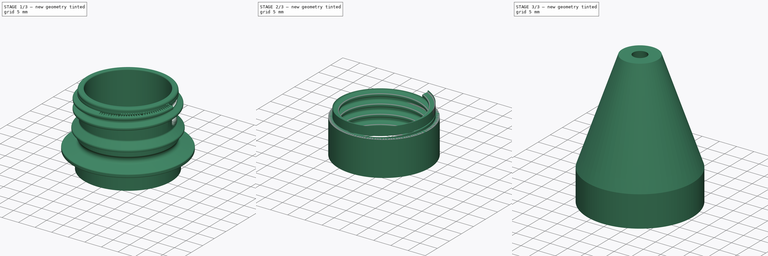
[diagram: build sequence overview — one tinted view per stage of 3, left to right]
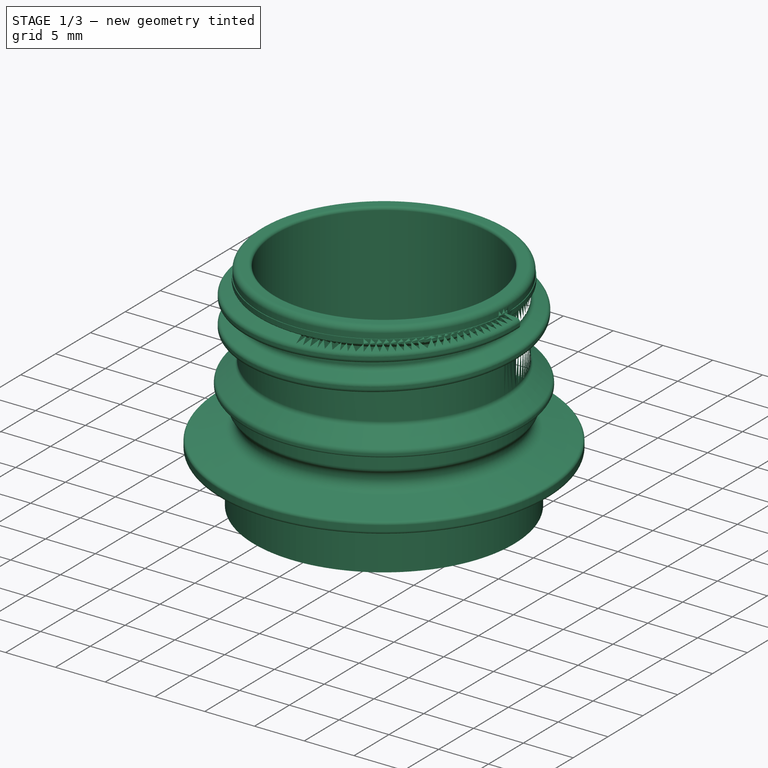
[diagram: stage 1 of 3 — iso view after this stage's code; geometry added in this stage tinted green]
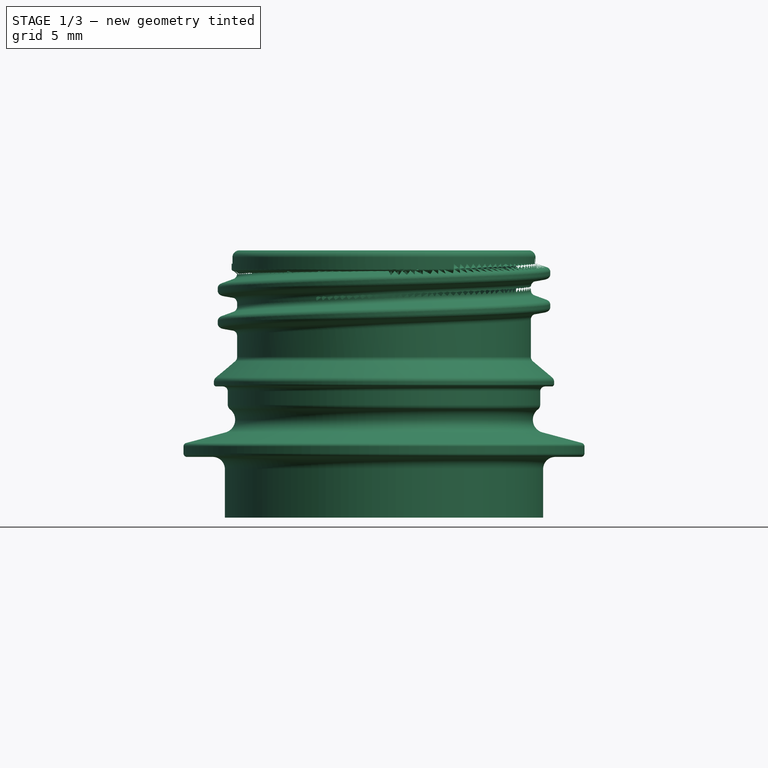
[diagram: stage 1 of 3 — front view after this stage's code; geometry added in this stage tinted green]
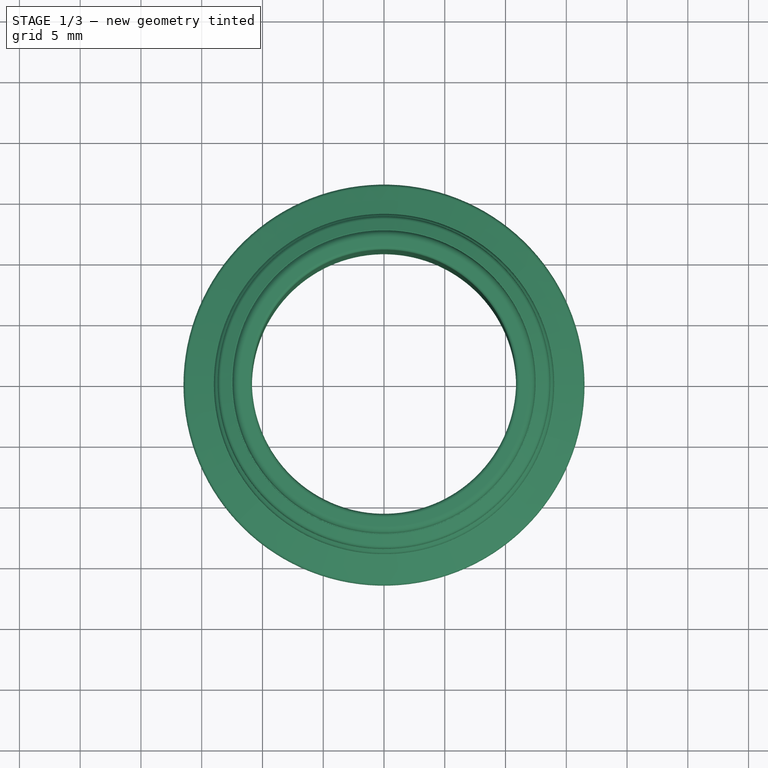
[diagram: stage 1 of 3 — top view after this stage's code; geometry added in this stage tinted green]
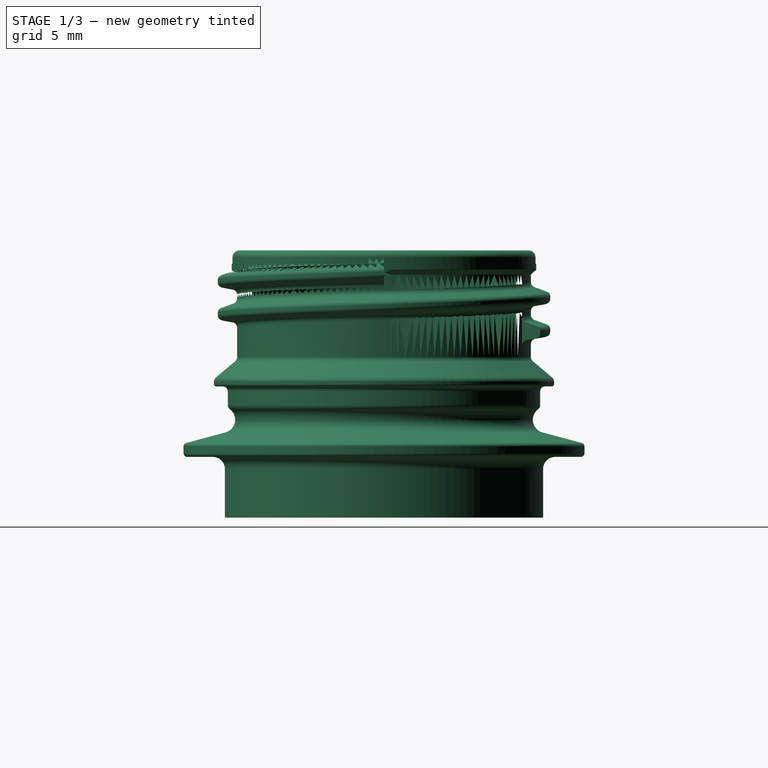
[diagram: stage 1 of 3 — right view after this stage's code; geometry added in this stage tinted green]
FCSTD DOCUMENT  (FreeCAD 0.22R36958 (Git))
Label: dosator
License: All rights reserved
LicenseURL: http://en.wikipedia.org/wiki/All_rights_reserved
objects: Sketcher::SketchObject×6, PartDesign::SubShapeBinder×4, PartDesign::Revolution×2, PartDesign::AdditiveHelix×2, PartDesign::Body×2, PartDesign::Pocket×2, PartDesign::Pad×1
note: 26 computed .brp shape members not serialized (recipe doc carries the construction recipe); baked Part::Feature solids carry a one-line shape summary decoded from their .brp

FEATURE [Sketcher::SketchObject] Sketch
  AttachmentSupport = -> [XZ_Plane]
  FullyConstrained = true
  MapMode = 5
  Placement = pos=(0,0,0) rot=(1,0,0;1.5708rad)
  sketch-geometry (36):
    g0: LineSegment StartX=10.87 StartY=21.7 StartZ=0 EndX=10.87 EndY=0 EndZ=0
    g1: LineSegment StartX=10.87 StartY=0 StartZ=0 EndX=13.095 EndY=0 EndZ=0
    g2: LineSegment StartX=13.095 StartY=0 StartZ=0 EndX=13.095 EndY=4 EndZ=0
    g3: LineSegment StartX=14.095 StartY=5 StartZ=0 EndX=16.2 EndY=5 EndZ=0
    g4: LineSegment StartX=16.5 StartY=5.3 StartZ=0 EndX=16.5 EndY=5.86 EndZ=0
    g5: LineSegment StartX=16.2776 StartY=6.14978 StartZ=0 EndX=13.0505 EndY=7.0145 EndZ=0
    g6: ArcOfCircle CenterX=14.095 CenterY=4 CenterZ=0 NormalX=0 NormalY=0 NormalZ=1 AngleXU=0 Radius=1 StartAngle=1.5708 EndAngle=3.14159
    g7: GeomPoint X=13.095 Y=5 Z=0
    g8: ArcOfCircle CenterX=16.2 CenterY=5.3 CenterZ=0 NormalX=0 NormalY=0 NormalZ=1 AngleXU=0 Radius=0.3 StartAngle=4.71239 EndAngle=6.28319
    g9: GeomPoint X=16.5 Y=5 Z=0
    g10: ArcOfCircle CenterX=16.2 CenterY=5.86 CenterZ=0 NormalX=0 NormalY=0 NormalZ=1 AngleXU=0 Radius=0.3 StartAngle=1.5e-15 EndAngle=1.309
    g11: GeomPoint X=16.5 Y=6.0902 Z=0
    g12: ArcOfCircle CenterX=13.33 CenterY=8.0577 CenterZ=0 NormalX=0 NormalY=0 NormalZ=1 AngleXU=0 Radius=1.08 StartAngle=2.23583 EndAngle=4.45059
    g13: ArcOfCircle CenterX=11.17 CenterY=21.7 CenterZ=0 NormalX=0 NormalY=0 NormalZ=1 AngleXU=0 Radius=0.3 StartAngle=1.5708 EndAngle=3.14159
    g14: ArcOfCircle CenterX=11.89 CenterY=21.42 CenterZ=0 NormalX=0 NormalY=0 NormalZ=1 AngleXU=0 Radius=0.58 StartAngle=8e-16 EndAngle=1.5708
    g15: ArcOfCircle CenterX=12.385 CenterY=20.45 CenterZ=0 NormalX=0 NormalY=0 NormalZ=1 AngleXU=0 Radius=0.15 StartAngle=4.71239 EndAngle=6.28319
    g16: ArcOfCircle CenterX=12.385 CenterY=20 CenterZ=0 NormalX=0 NormalY=0 NormalZ=1 AngleXU=0 Radius=0.3 StartAngle=1.5708 EndAngle=3.14159
    g17: LineSegment StartX=11.17 StartY=22 StartZ=0 EndX=11.89 EndY=22 EndZ=0
    g18: LineSegment StartX=12.47 StartY=21.42 StartZ=0 EndX=12.47 EndY=20.9 EndZ=0
    g19: LineSegment StartX=12.47 StartY=20.9 StartZ=0 EndX=12.535 EndY=20.9 EndZ=0
    g20: LineSegment StartX=12.535 StartY=20.45 StartZ=0 EndX=12.535 EndY=20.9 EndZ=0
    g21: LineSegment StartX=0 StartY=20.3 StartZ=0 EndX=12.385 EndY=20.3 EndZ=0
    g22: LineSegment StartX=12.085 StartY=20 StartZ=0 EndX=12.085 EndY=13.2432 EndZ=0
    g23: ArcOfCircle CenterX=12.355 CenterY=9.30099 CenterZ=0 NormalX=0 NormalY=0 NormalZ=1 AngleXU=0 Radius=0.5 StartAngle=5.37743 EndAngle=6.28319
    g24: LineSegment StartX=12.855 StartY=9.30099 StartZ=0 EndX=12.855 EndY=10.39 EndZ=0
    g25: LineSegment StartX=13.265 StartY=10.8 StartZ=0 EndX=13.8 EndY=10.8 EndZ=0
    g26: LineSegment StartX=14 StartY=11 StartZ=0 EndX=14 EndY=11.17 EndZ=0
    g27: LineSegment StartX=13.8214 StartY=11.553 StartZ=0 EndX=12.2636 EndY=12.8602 EndZ=0
    g28: ArcOfCircle CenterX=13.265 CenterY=10.39 CenterZ=0 NormalX=0 NormalY=0 NormalZ=1 AngleXU=0 Radius=0.41 StartAngle=1.5708 EndAngle=3.14159
    g29: GeomPoint X=12.855 Y=10.8 Z=0
    g30: ArcOfCircle CenterX=13.8 CenterY=11 CenterZ=0 NormalX=0 NormalY=0 NormalZ=1 AngleXU=0 Radius=0.2 StartAngle=4.71239 EndAngle=6.28319
    g31: GeomPoint X=14 Y=10.8 Z=0
    g32: ArcOfCircle CenterX=13.5 CenterY=11.17 CenterZ=0 NormalX=0 NormalY=0 NormalZ=1 AngleXU=0 Radius=0.5 StartAngle=1.8e-15 EndAngle=0.872665
    g33: GeomPoint X=14 Y=11.4032 Z=0
    g34: ArcOfCircle CenterX=12.585 CenterY=13.2432 CenterZ=0 NormalX=0 NormalY=0 NormalZ=1 AngleXU=0 Radius=0.5 StartAngle=3.14159 EndAngle=4.01426
    g35: LineSegment StartX=0 StartY=8.0577 StartZ=0 EndX=12.25 EndY=8.0577 EndZ=0
  constraints (93):
    c: PointOnObject(g0,g-1)
    c: Vertical(g0)
    c: Coincident(g0,g1)
    c: PointOnObject(g1,g-1)
    c: Coincident(g1,g2)
    c: Vertical(g2)
    c: Horizontal(g3)
    c: Vertical(g4)
    c: PointOnObject(g7,g2)
    c: PointOnObject(g7,g3)
    c: Tangent(g2,g6) = 1.5708
    c: Tangent(g3,g6) = 1.5708
    c: PointOnObject(g9,g3)
    c: PointOnObject(g9,g4)
    c: Tangent(g3,g8) = -1.5708
    c: Tangent(g4,g8) = -1.5708
    c: PointOnObject(g11,g4)
    c: PointOnObject(g11,g5)
    c: Tangent(g4,g10) = -1.5708
    c: Tangent(g5,g10) = -1.5708
    c: Radius(g12) = 1.08
    c: Radius(g6) = 1
    c: DistanceX(g1) = 13.095
    c: Equal(g8,g10)
    c: Radius(g8) = 0.3
    c: Tangent(g12,g5) = 1.5708
    c: DistanceX(g4) = 16.5
    c: DistanceY(g7) = 5
    c: DistanceY(g4,g4) = 0.56
    c: Coincident(g19,g18)
    c: Horizontal(g19)
    c: Coincident(g20,g19)
    c: Vertical(g20)
    c: Vertical(g18)
    c: Horizontal(g17)
    c: Tangent(g17,g13) = 1.5708
    c: Tangent(g17,g14) = 1.5708
    c: Tangent(g18,g14) = 1.5708
    c: Tangent(g13,g0) = -1.5708
    c: Tangent(g16,g15) = 1.5708
    c: PointOnObject(g21,g-2)
    c: Horizontal(g21)
    c: Tangent(g21,g15) = -1.5708
    c: Tangent(g20,g15) = -1.5708
    c: Radius(g15) = 0.15
    c: Radius(g16) = 0.3
    c: Tangent(g22,g16) = -1.5708
    c: Vertical(g22)
    c: Radius(g13) = 0.3
    c: Radius(g14) = 0.58
    c: DistanceX(g18) = 12.47
    c: DistanceX(g19) = 12.535
    c: DistanceY(g15,g14) = 1.7
    c: DistanceY(g18,g14) = 1.1
    c: DistanceX(g0) = 10.87
    c: DistanceY(g7,g14) = 17
    c: Angle(g5,g3) = 0.261799
    c: Tangent(g23,g12) = 1.5708
    c: Radius(g23) = 0.5
    c: Tangent(g23,g24) = -1.5708
    c: Horizontal(g25)
    c: Vertical(g26)
    c: Vertical(g24)
    c: PointOnObject(g29,g24)
    c: PointOnObject(g29,g25)
    c: Tangent(g24,g28) = 1.5708
    c: Tangent(g25,g28) = 1.5708
    c: PointOnObject(g31,g25)
    c: PointOnObject(g31,g26)
    c: Tangent(g25,g30) = -1.5708
    c: Tangent(g26,g30) = -1.5708
    c: PointOnObject(g33,g26)
    c: PointOnObject(g33,g27)
    c: Tangent(g26,g32) = -1.5708
    c: Tangent(g27,g32) = -1.5708
    c: Radius(g28) = 0.41
    c: Radius(g30) = 0.2
    c: Radius(g32) = 0.5
    c: Angle(g27,g-1) = 0.698132
    c: Tangent(g34,g27) = 1.5708
    c: Tangent(g34,g22) = -1.5708
    c: Radius(g34) = 0.5
    c: DistanceX(g26) = 14
    c: DistanceX(g29) = 12.855
    c: PointOnObject(g35,g-2)
    c: PointOnObject(g35,g12)
    c: Horizontal(g35)
    c: Perpendicular(g12,g35)
    c: DistanceX(g35) = 12.25
    c: DistanceY(g26,g26) = 0.17
    c: DistanceY(g29,g14) = 11.2
    c: DistanceX(g16) = 12.085
    c: DistanceY(g34,g14) = 8.75682
FEATURE [PartDesign::Revolution] Revolution
  Angle = 360
  Angle2 = 60
  Axis = (0,2e-16,1)
  Base = (0,0,0)
  Placement = pos=(0,0,0) rot=(1,0,0;1.5708rad)
  Profile = -> Sketch
  ReferenceAxis = -> Sketch [V_Axis]
  Reversed = true
  Suppressed = false
  Type = 0
FEATURE [Sketcher::SketchObject] Sketch001
  AttachmentOffset = pos=(12.085,19,0) rot=(0,0,1;0rad)
  AttachmentSupport = -> [XZ_Plane]
  FullyConstrained = true
  MapMode = 5
  Placement = pos=(12.085,4.2e-15,19) rot=(1,0,0;1.5708rad)
  sketch-geometry (10):
    g0: ArcOfCircle CenterX=0.5 CenterY=1e-16 CenterZ=0 NormalX=0 NormalY=0 NormalZ=1 AngleXU=0 Radius=0.5 StartAngle=1.74533 EndAngle=3.14159
    g1: LineSegment StartX=0.413176 StartY=0.492404 StartZ=0 EndX=1.26946 EndY=0.64339 EndZ=0
    g2: LineSegment StartX=1.6 StartY=1.03731 StartZ=0 EndX=1.6 EndY=1.22159 EndZ=0
    g3: LineSegment StartX=1.33681 StartY=1.59747 StartZ=0 EndX=0.32899 EndY=1.96428 EndZ=0
    g4: ArcOfCircle CenterX=0.5 CenterY=2.43413 CenterZ=0 NormalX=0 NormalY=0 NormalZ=1 AngleXU=0 Radius=0.5 StartAngle=3.14159 EndAngle=4.36332
    g5: ArcOfCircle CenterX=1.2 CenterY=1.03731 CenterZ=0 NormalX=0 NormalY=0 NormalZ=1 AngleXU=0 Radius=0.4 StartAngle=4.88692 EndAngle=6.28319
    g6: GeomPoint X=1.6 Y=0.701673 Z=0
    g7: ArcOfCircle CenterX=1.2 CenterY=1.22159 CenterZ=0 NormalX=0 NormalY=0 NormalZ=1 AngleXU=0 Radius=0.4 StartAngle=0 EndAngle=1.22173
    g8: GeomPoint X=1.6 Y=1.50167 Z=0
    g9: LineSegment StartX=0 StartY=2.43413 StartZ=0 EndX=0 EndY=0 EndZ=0
  constraints (24):
    c: Tangent(g0,g1) = 1.5708
    c: Tangent(g4,g-2) = 1.5708
    c: Tangent(g0,g-2) = 1.5708
    c: Angle(g1,g-1) = 2.96706
    c: PointOnObject(g6,g1)
    c: PointOnObject(g6,g2)
    c: Tangent(g1,g5) = -1.5708
    c: Tangent(g2,g5) = -1.5708
    c: PointOnObject(g8,g2)
    c: PointOnObject(g8,g3)
    c: Tangent(g2,g7) = -1.5708
    c: Tangent(g3,g7) = -1.5708
    c: Vertical(g2)
    c: DistanceX(g6) = 1.6
    c: Equal(g5,g7)
    c: Radius(g5) = 0.4
    c: Equal(g0,g4)
    c: Radius(g0) = 0.5
    c: DistanceY(g6,g8) = 0.8
    c: PointOnObject(g0,g-1)
    c: Angle(g3,g-1) = 0.349066
    c: Tangent(g4,g3) = 1.5708
    c: Coincident(g9,g0)
    c: Coincident(g9,g4)
FEATURE [PartDesign::AdditiveHelix] AdditiveHelix
  Angle = 0
  Axis = (1e-16,1e-16,1)
  Base = (0,0,0)
  BaseFeature = -> Revolution
  Growth = 0
  HasBeenEdited = true
  Height = 4.875
  LeftHanded = false
  Mode = 1
  Outside = false
  Pitch = 2.7
  Placement = pos=(0,0,0) rot=(1,0,0;1.5708rad)
  Profile = -> Sketch001
  ReferenceAxis = -> Z_Axis
  Reversed = true
  Suppressed = false
  Turns = 1.80556
  expr: Turns = 650 / 360
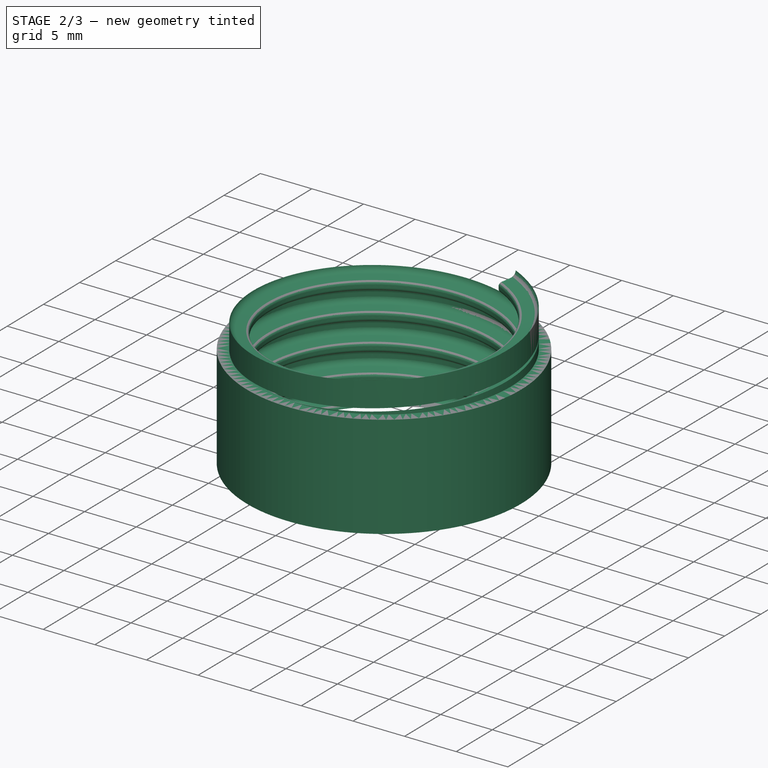
[diagram: stage 2 of 3 — iso view after this stage's code; geometry added in this stage tinted green]
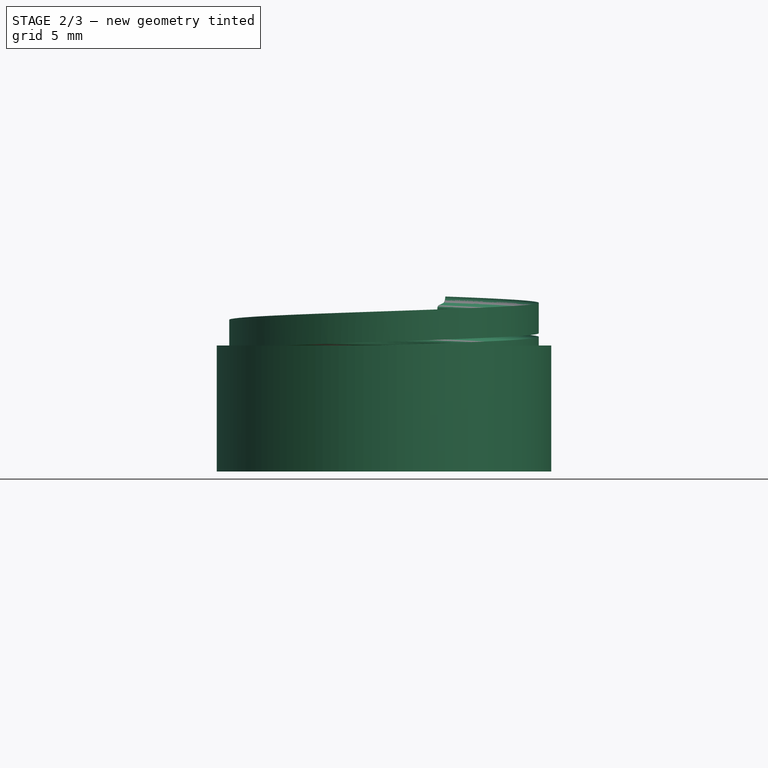
[diagram: stage 2 of 3 — front view after this stage's code; geometry added in this stage tinted green]
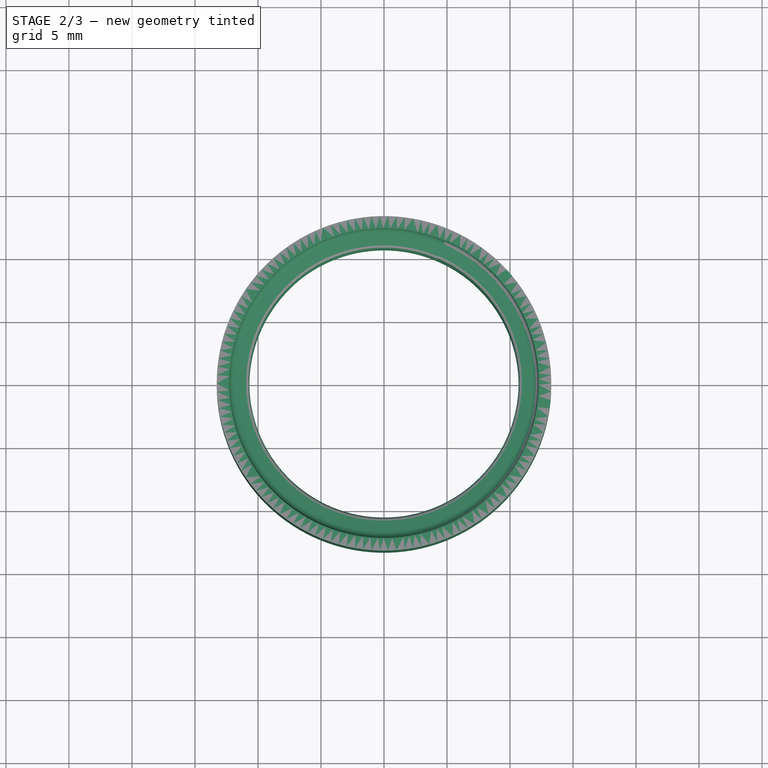
[diagram: stage 2 of 3 — top view after this stage's code; geometry added in this stage tinted green]
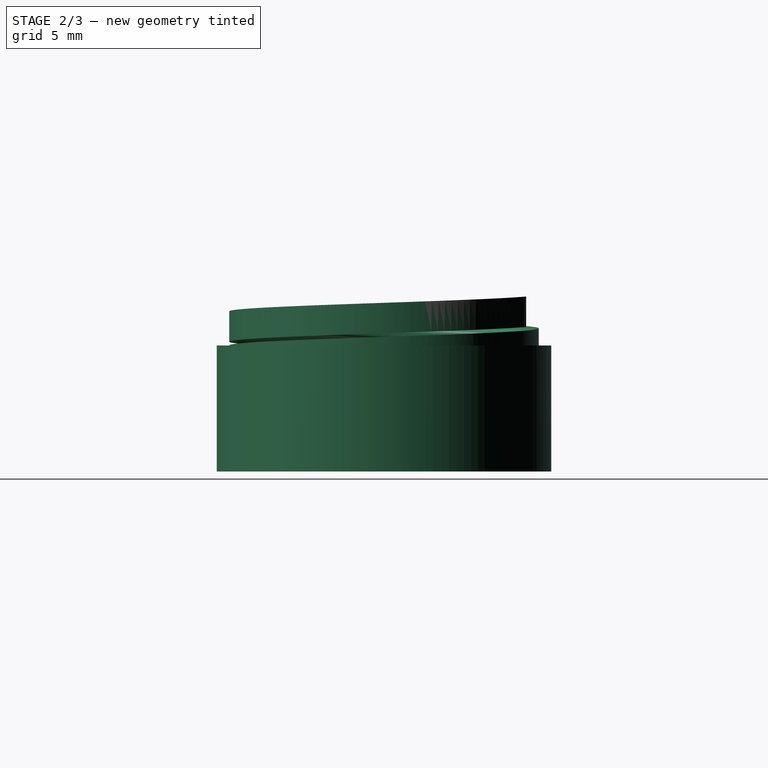
[diagram: stage 2 of 3 — right view after this stage's code; geometry added in this stage tinted green]
FEATURE [PartDesign::Body] Body
  Group = -> [Sketch,Revolution,Sketch001,AdditiveHelix]
  Origin = -> Origin
  Tip = -> AdditiveHelix
FEATURE [Sketcher::SketchObject] Sketch002
  AttachmentSupport = -> [XZ_Plane001]
  FullyConstrained = true
  MapMode = 5
  Placement = pos=(0,0,0) rot=(1,0,0;1.5708rad)
  sketch-geometry (8):
    g0: LineSegment StartX=2 StartY=38.5 StartZ=0 EndX=12.285 EndY=8.5 EndZ=0
    g1: LineSegment StartX=12.285 StartY=8.5 StartZ=0 EndX=12.285 EndY=0 EndZ=0
    g2: LineSegment StartX=12.285 StartY=0 StartZ=0 EndX=15.285 EndY=0 EndZ=0
    g3: LineSegment StartX=15.285 StartY=0 StartZ=0 EndX=15.285 EndY=8.99997 EndZ=0
    g4: LineSegment StartX=15.285 StartY=8.99997 StartZ=0 EndX=5.17141 EndY=38.5 EndZ=0
    g5: LineSegment StartX=5.17141 StartY=38.5 StartZ=0 EndX=2 EndY=38.5 EndZ=0
    g6: LineSegment StartX=12.285 StartY=8.5 StartZ=0 EndX=15.285 EndY=8.5 EndZ=0
    g7: LineSegment StartX=12.285 StartY=8.5 StartZ=0 EndX=15.1229 EndY=9.47291 EndZ=0
  constraints (24):
    c: Coincident(g0,g1)
    c: PointOnObject(g1,g-1)
    c: Vertical(g1)
    c: Coincident(g1,g2)
    c: PointOnObject(g2,g-1)
    c: Coincident(g2,g3)
    c: Vertical(g3)
    c: Coincident(g3,g4)
    c: Coincident(g4,g5)
    c: Coincident(g5,g0)
    c: Horizontal(g5)
    c: DistanceX(g0) = 2
    c: DistanceY(g1,g1) = 8.5
    c: DistanceX(g2,g2) = 3
    c: DistanceX(g1) = 12.285
    c: Parallel(g4,g0)
    c: Coincident(g0,g6)
    c: PointOnObject(g6,g3)
    c: Coincident(g0,g7)
    c: PointOnObject(g7,g4)
    c: Perpendicular(g4,g7)
    c: Equal(g7,g6)
    c: DistanceY(g0,g0) = 30
    c: Perpendicular(g3,g6)
FEATURE [PartDesign::SubShapeBinder] Binder
  BindCopyOnChange = 0
  BindMode = 0
  ClaimChildren = true
  Context = -> Body001 [Binder.]
  Fuse = false
  MakeFace = true
  OffsetFill = false
  OffsetIntersection = false
  OffsetJoinType = 0
  OffsetOpenResult = false
  PartialLoad = false
  Placement = pos=(0,0,0) rot=(1,0,0;1.5708rad)
  Relative = false
  Support = -> [Body[AdditiveHelix.Sketch001.]]
  _Version = 2
FEATURE [PartDesign::SubShapeBinder] Binder001
  BindCopyOnChange = 0
  BindMode = 0
  ClaimChildren = true
  Context = -> Body001 [Binder001.]
  Fuse = false
  MakeFace = true
  OffsetFill = false
  OffsetIntersection = false
  OffsetJoinType = 0
  OffsetOpenResult = false
  PartialLoad = false
  Placement = pos=(0,0,2.7) rot=(1,0,0;1.5708rad)
  Relative = false
  Support = -> [Body[AdditiveHelix.Sketch001.]]
  _Version = 2
FEATURE [Sketcher::SketchObject] Sketch003
  AttachmentSupport = -> [XZ_Plane001]
  ExternalGeometry = -> [Binder,Binder001]
  FullyConstrained = true
  MapMode = 5
  Placement = pos=(0,0,0) rot=(1,0,0;1.5708rad)
  sketch-geometry (12):
    g0: ArcOfCircle CenterX=0.5 CenterY=2.7 CenterZ=0 NormalX=0 NormalY=0 NormalZ=1 AngleXU=0 Radius=0.3 StartAngle=1.74533 EndAngle=3.14159
    g1: ArcOfCircle CenterX=0.5 CenterY=2.43413 CenterZ=0 NormalX=0 NormalY=0 NormalZ=1 AngleXU=0 Radius=0.3 StartAngle=3.14159 EndAngle=4.36332
    g2: ArcOfCircle CenterX=1.2 CenterY=1.22159 CenterZ=0 NormalX=0 NormalY=0 NormalZ=1 AngleXU=0 Radius=0.6 StartAngle=0.174533 EndAngle=1.22173
    g3: ArcOfCircle CenterX=1.2 CenterY=3.73731 CenterZ=0 NormalX=0 NormalY=0 NormalZ=1 AngleXU=0 Radius=0.6 StartAngle=4.88692 EndAngle=6.10865
    g4: LineSegment StartX=1.30419 StartY=3.14643 StartZ=0 EndX=0.447906 EndY=2.99544 EndZ=0
    g5: LineSegment StartX=0.2 StartY=2.43413 StartZ=0 EndX=0.2 EndY=2.7 EndZ=0
    g6: LineSegment StartX=0.397394 StartY=2.15222 StartZ=0 EndX=1.40521 EndY=1.78541 EndZ=0
    g7: LineSegment StartX=1.8 StartY=1.27408 StartZ=0 EndX=1.8 EndY=3.68482 EndZ=0
    g8: LineSegment StartX=1.26946 StartY=3.34339 StartZ=0 EndX=1.30419 EndY=3.14643 EndZ=0
    g9: LineSegment StartX=0.447906 StartY=2.99544 StartZ=0 EndX=0.413176 EndY=3.1924 EndZ=0
    g10: LineSegment StartX=1.79088 StartY=3.63312 StartZ=0 EndX=1.8 EndY=3.68482 EndZ=0
    g11: LineSegment StartX=1.79088 StartY=1.32578 StartZ=0 EndX=1.8 EndY=1.27408 EndZ=0
  constraints (28):
    c: Coincident(g0,g-5)
    c: Coincident(g1,g-6)
    c: Coincident(g2,g-8)
    c: Coincident(g3,g-7)
    c: Tangent(g4,g3) = 1.5708
    c: Tangent(g4,g0) = -1.5708
    c: Tangent(g5,g0) = 1.5708
    c: Tangent(g5,g1) = 1.5708
    c: Tangent(g6,g1) = -1.5708
    c: Tangent(g6,g2) = 1.5708
    c: Equal(g2,g3)
    c: Distance(g0,g-5) = 0.2
    c: Coincident(g8,g-7)
    c: PointOnObject(g8,g3)
    c: Perpendicular(g3,g8)
    c: Coincident(g9,g0)
    c: PointOnObject(g9,g-5)
    c: Perpendicular(g-5,g9)
    c: Equal(g8,g9)
    c: Equal(g1,g0)
    c: Coincident(g7,g10)
    c: Coincident(g7,g11)
    c: DistanceX(g7) = 1.8
    c: Tangent(g2,g11) = 1.5708
    c: Vertical(g7)
    c: Tangent(g3,g10) = -1.5708
    c: Angle(g10,g7) = 0.174533
    c: Angle(g7,g11) = 0.174533
FEATURE [PartDesign::SubShapeBinder] Binder002
  BindCopyOnChange = 0
  BindMode = 0
  ClaimChildren = false
  Context = -> Body001 [Binder002.]
  Fuse = false
  MakeFace = true
  OffsetFill = false
  OffsetIntersection = false
  OffsetJoinType = 0
  OffsetOpenResult = false
  PartialLoad = false
  Placement = pos=(10.485,0,-3.8) rot=(0,0,1;0rad)
  Relative = true
  Support = -> [Sketch003]
  _Version = 2
FEATURE [Sketcher::SketchObject] Sketch004
  AttachmentSupport = -> [XY_Plane001]
  FullyConstrained = false
  MapMode = 5
  sketch-geometry (2):
    g0: Circle CenterX=0 CenterY=0 CenterZ=0 NormalX=0 NormalY=0 NormalZ=1 AngleXU=0 Radius=4.45523
    g1: Circle CenterX=0 CenterY=0 CenterZ=0 NormalX=0 NormalY=0 NormalZ=1 AngleXU=0 Radius=38.0986
  constraints (2):
    c: Coincident(g0,g-1)
    c: Coincident(g1,g0)
FEATURE [PartDesign::SubShapeBinder] Binder003
  BindCopyOnChange = 0
  BindMode = 0
  ClaimChildren = false
  Context = -> Body001 [Binder003.]
  Fuse = false
  MakeFace = true
  OffsetFill = false
  OffsetIntersection = false
  OffsetJoinType = 0
  OffsetOpenResult = false
  PartialLoad = false
  Placement = pos=(0,0,8.5) rot=(0,0,1;0rad)
  Relative = true
  Support = -> [Sketch004]
  _Version = 2
FEATURE [Sketcher::SketchObject] Sketch005
  AttachmentSupport = -> [XY_Plane001]
  ExternalGeometry = -> [Binder002]
  FullyConstrained = true
  MapMode = 5
  sketch-geometry (2):
    g0: Circle CenterX=0 CenterY=0 CenterZ=0 NormalX=0 NormalY=0 NormalZ=1 AngleXU=0 Radius=12.275
    g1: Circle CenterX=0 CenterY=0 CenterZ=0 NormalX=0 NormalY=0 NormalZ=1 AngleXU=0 Radius=13.275
  constraints (4):
    c: Coincident(g0,g-1)
    c: Coincident(g1,g0)
    c: Distance(g0,g1) = 1
    c: Distance(g-3,g0) = 0.01
FEATURE [PartDesign::Pad] Pad
  Direction = (0,0,1)
  Length = 10
  Length2 = 10
  Profile = -> Sketch005
  ReferenceAxis = -> Sketch005 [N_Axis]
  Suppressed = false
  Type = 0
FEATURE [PartDesign::AdditiveHelix] AdditiveHelix001
  Angle = 0
  Axis = (1e-16,1e-16,1)
  Base = (0,0,0)
  BaseFeature = -> Pad
  Growth = 0
  HasBeenEdited = true
  Height = 14
  LeftHanded = false
  Mode = 0
  Outside = false
  Pitch = 2.7
  Profile = -> Binder002
  ReferenceAxis = -> Z_Axis001
  Suppressed = false
  Turns = 5.18519
FEATURE [PartDesign::Pocket] Pocket
  BaseFeature = -> AdditiveHelix001
  Direction = (0,0,-1)
  Length = 5
  Length2 = 5
  Profile = -> Sketch004
  ReferenceAxis = -> Sketch004 [N_Axis]
  Suppressed = false
  Type = 1
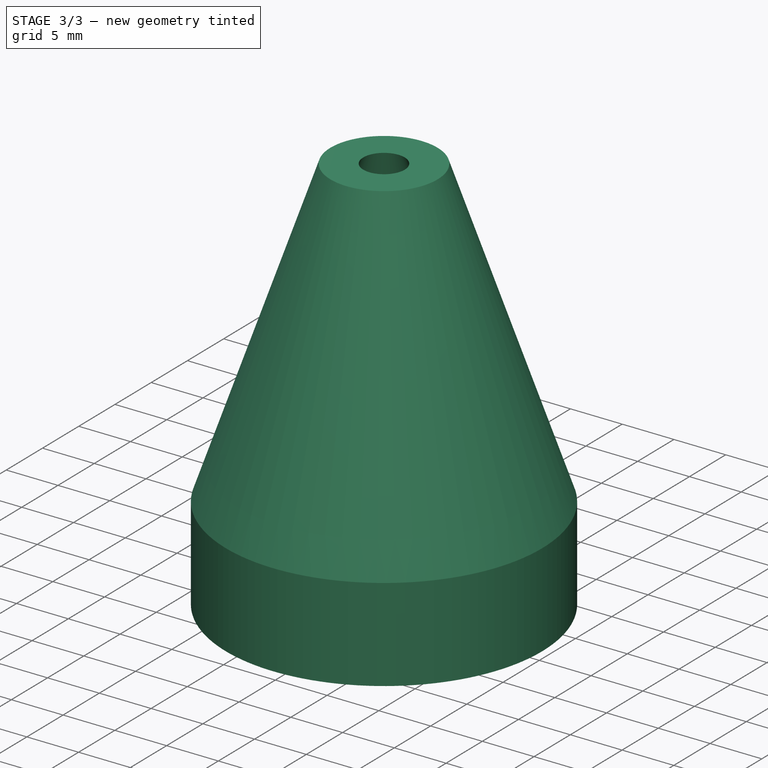
[diagram: stage 3 of 3 — iso view after this stage's code; geometry added in this stage tinted green]
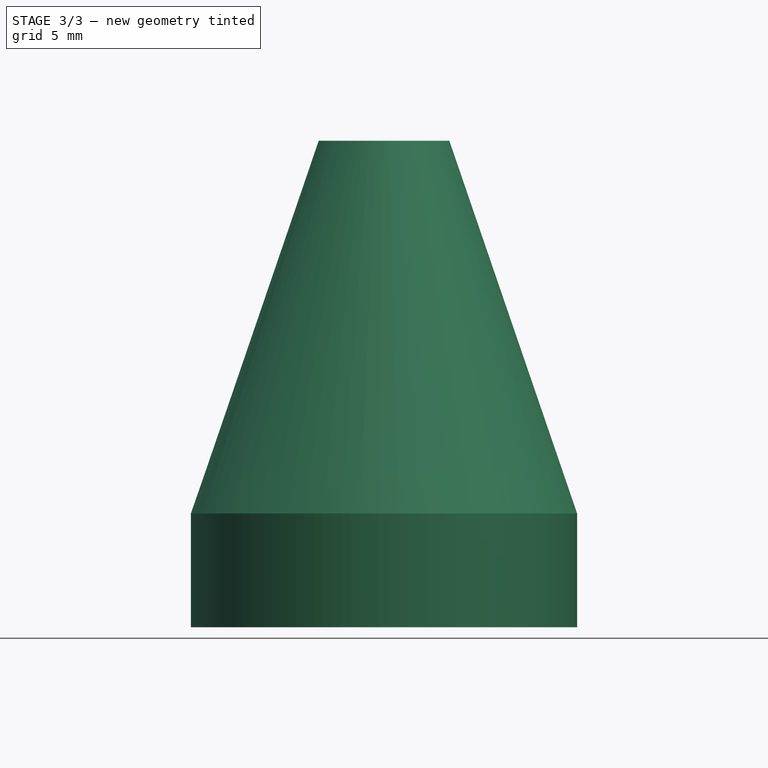
[diagram: stage 3 of 3 — front view after this stage's code; geometry added in this stage tinted green]
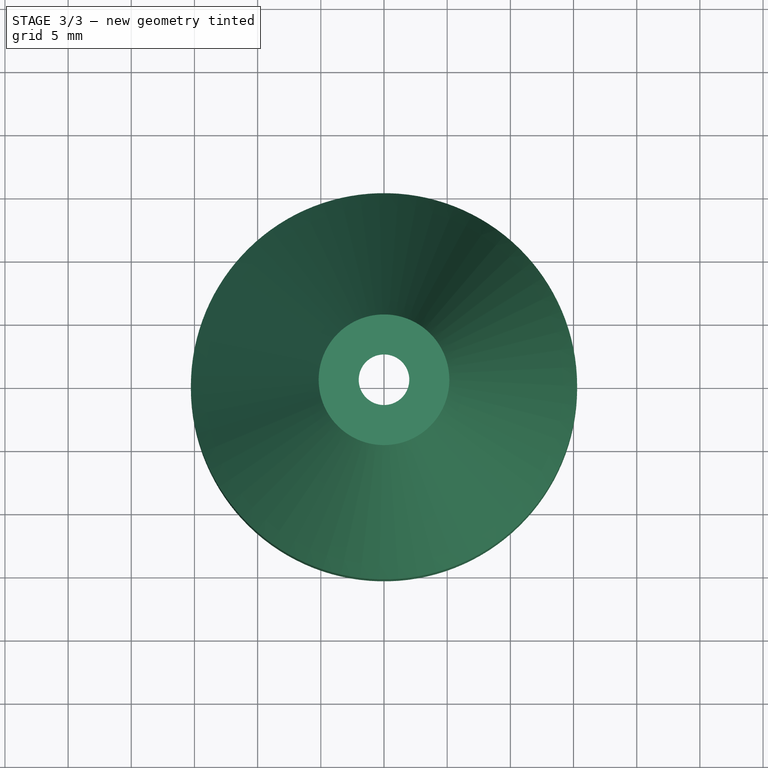
[diagram: stage 3 of 3 — top view after this stage's code; geometry added in this stage tinted green]
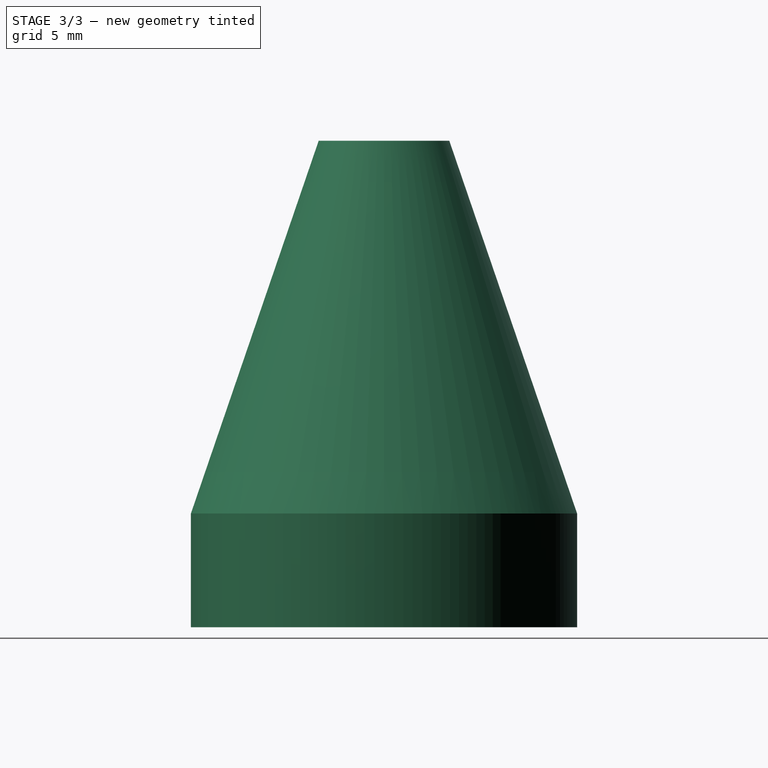
[diagram: stage 3 of 3 — right view after this stage's code; geometry added in this stage tinted green]
FEATURE [PartDesign::Pocket] Pocket001
  BaseFeature = -> Pocket
  Direction = (0,0,-1)
  Length = 5
  Length2 = 5
  Profile = -> Binder003 [Edge1]
  Reversed = true
  Suppressed = false
  Type = 1
FEATURE [PartDesign::Revolution] Revolution001
  Angle = 360
  Angle2 = 60
  Axis = (0,2e-16,1)
  Base = (0,0,0)
  BaseFeature = -> Pocket001
  Profile = -> Sketch002
  ReferenceAxis = -> Sketch002 [V_Axis]
  Reversed = true
  Suppressed = false
  Type = 0
FEATURE [PartDesign::Body] Body001
  Group = -> [Pad,AdditiveHelix001,Sketch005,Pocket,Sketch002,Binder003,Pocket001,Revolution001,Binder,Binder001,Sketch003,Binder002,Sketch004]
  Origin = -> Origin001
  Tip = -> Revolution001
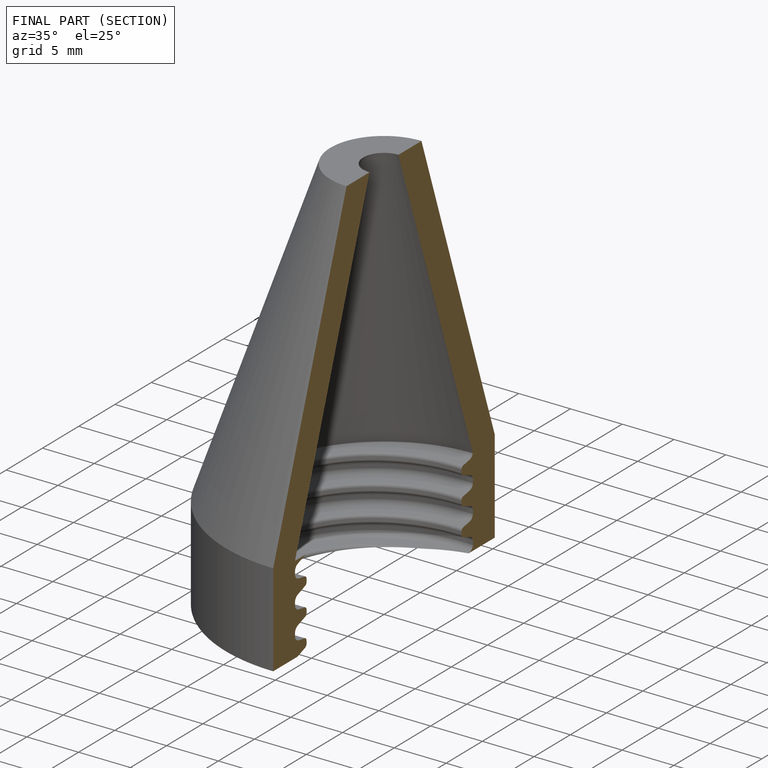
[diagram: finished part — half-section view (interior)]
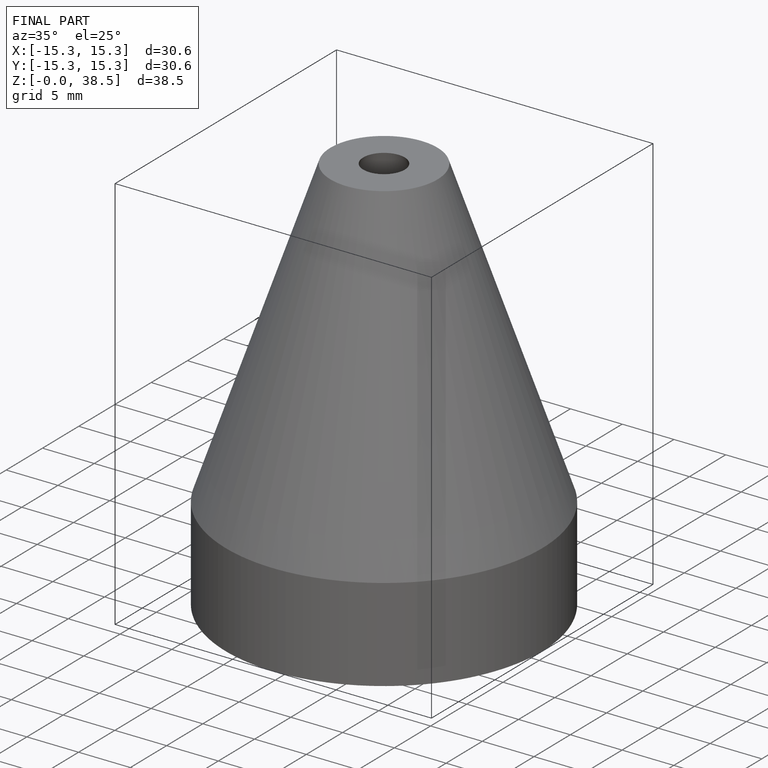
[diagram: finished part — iso view with bounding-box wireframe]
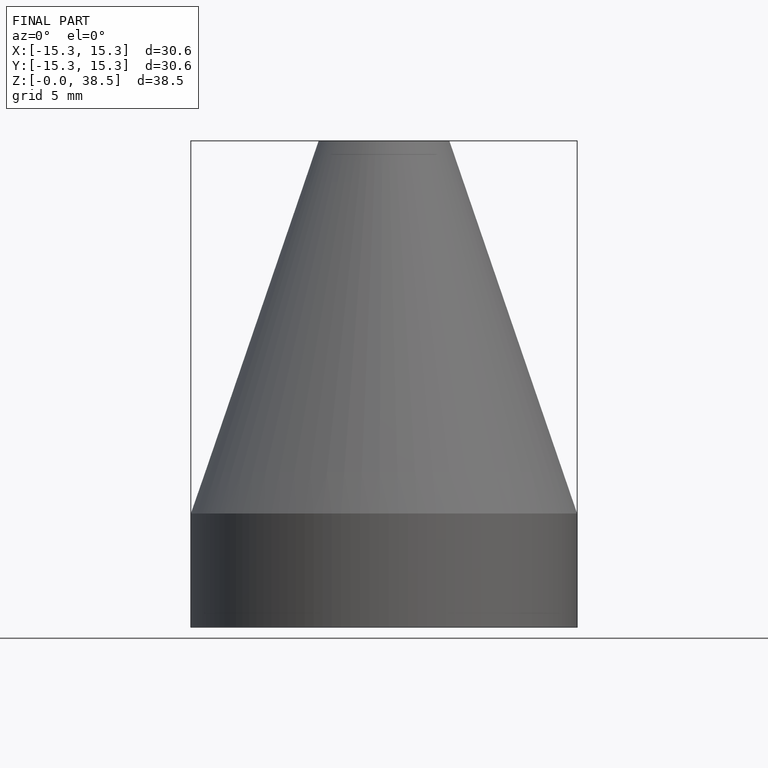
[diagram: finished part — front view with bounding-box wireframe]
